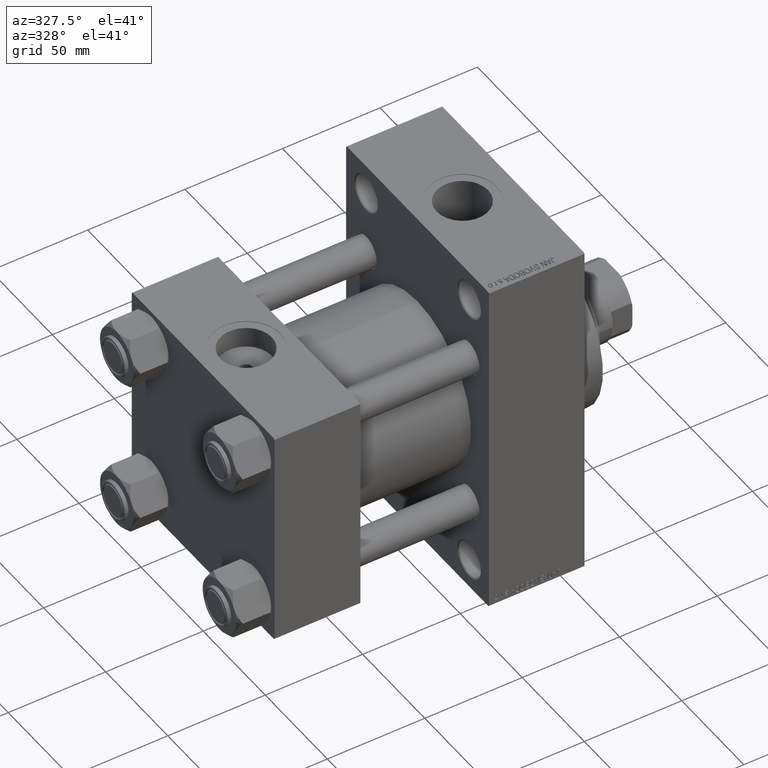
[diagram: clean part render]
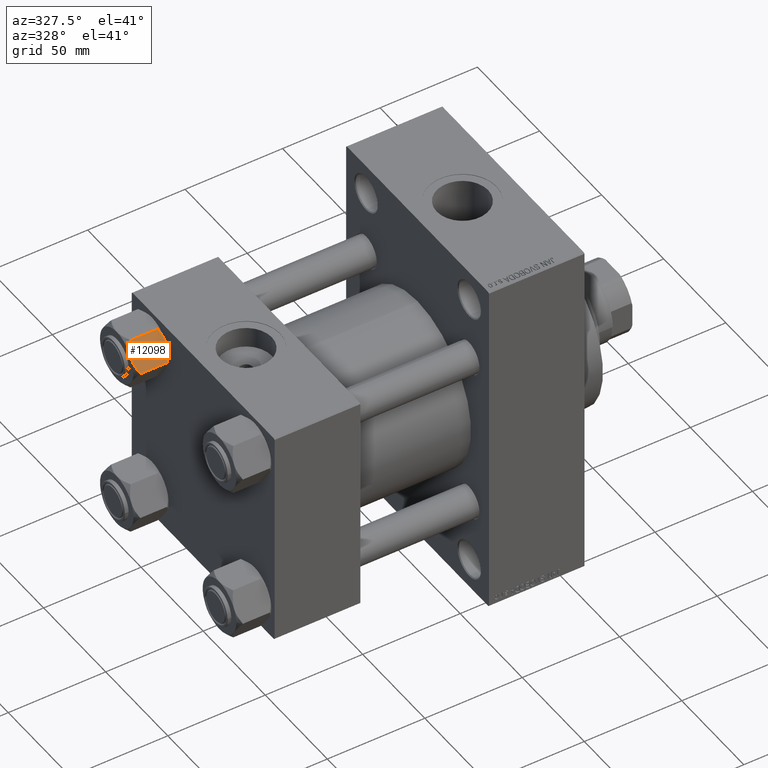
[diagram: same view with one face highlighted and labeled with its STEP entity id]
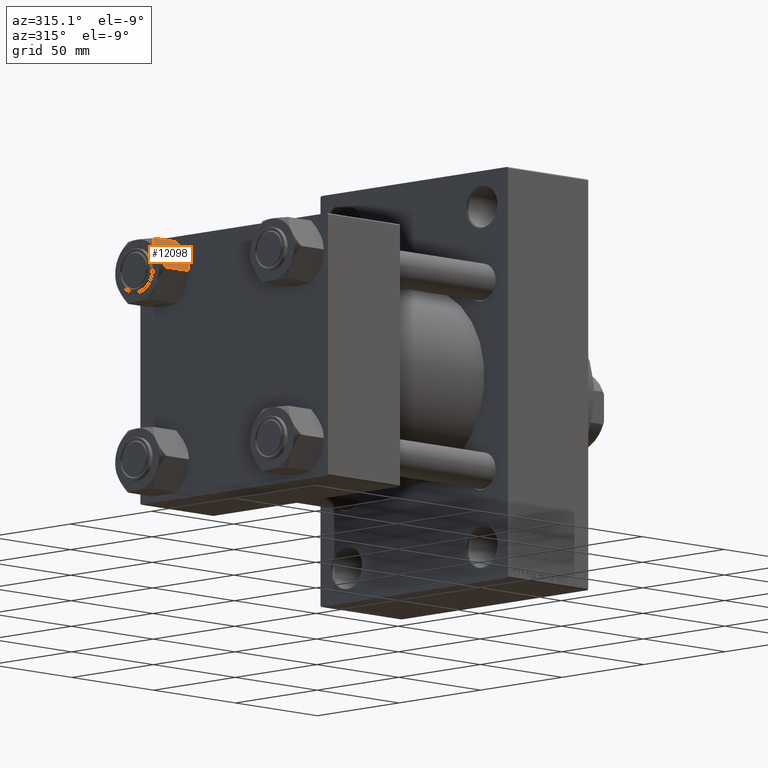
[diagram: same view with one face highlighted and labeled with its STEP entity id]
A machine part, auxiliary view. The second image highlights one B-rep face of the part: STEP entity #12098.
A second angle (auxiliary view) of the same face is appended — the face is thin or edge-on in the first view.
In plain terms, the highlighted planar face has unit normal (0, 0.866, -0.5).
Its self-contained STEP definition (entity closure, byte-faithful):
#261 = CARTESIAN_POINT ( 'NONE',  ( -15.52647173767732980, -0.1619957022864788043, -2.000000000000000000 ) ) ;
#283 = ORIENTED_EDGE ( 'NONE', *, *, #30141, .F. ) ;
#985 = CARTESIAN_POINT ( 'NONE',  ( -14.31545111198821552, -2.259544954993873311, -0.9142282604026915616 ) ) ;
#2061 = CARTESIAN_POINT ( 'NONE',  ( -12.37702203890362540, -5.617002596445037632, -18.00000000000000711 ) ) ;
#2301 = VERTEX_POINT ( 'NONE', #3026 ) ;
#2309 = CARTESIAN_POINT ( 'NONE',  ( -11.04378428799595468, -7.926238119585997666, -17.94910618364700028 ) ) ;
#2690 = CARTESIAN_POINT ( 'NONE',  ( -7.903528262322674358, -13.36532110482643354, -2.000000000000000000 ) ) ;
#3026 = CARTESIAN_POINT ( 'NONE',  ( -11.71500000000000874, -6.763658403556459753, 0.000000000000000000 ) ) ;
#3463 = CARTESIAN_POINT ( 'NONE',  ( -11.71500000000000874, -6.763658403556459753, -18.00000000000000000 ) ) ;
#4483 = CARTESIAN_POINT ( 'NONE',  ( -12.38621571200405391, -5.601078687526916511, -0.05089381635300645190 ) ) ;
#4737 = CARTESIAN_POINT ( 'NONE',  ( -13.04337073483128329, -4.462852799541069615, -0.2430846701012900901 ) ) ;
#5816 = CARTESIAN_POINT ( 'NONE',  ( -15.22736220980736199, -0.6800686015852018818, -16.29368822085855584 ) ) ;
#6088 = ORIENTED_EDGE ( 'NONE', *, *, #22617, .F. ) ;
#6796 = DIRECTION ( 'NONE',  ( 0.8660254037844390407, 0.4999999999999994449, 0.000000000000000000 ) ) ;
#7059 = CARTESIAN_POINT ( 'NONE',  ( -7.809999999999999609, -13.52731680711293727, -16.00000000000000000 ) ) ;
#7578 = B_SPLINE_CURVE_WITH_KNOTS ( 'NONE', 3,
 ( #36566, #16647, #47392, #13608, #28998, #2309, #17641, #28265 ),
 .UNSPECIFIED., .F., .F.,
 ( 4, 2, 2, 4 ),
 ( 4.472842641813524291E-07, 0.003945636373369312659, 0.005918230917921874813, 0.007890825462474436100 ),
 .UNSPECIFIED. ) ;
#9036 = DIRECTION ( 'NONE',  ( -0.4999999999999994449, 0.8660254037844390407, 0.000000000000000000 ) ) ;
#10563 = DIRECTION ( 'NONE',  ( -0.4999999999999993894, 0.8660254037844389297, 0.000000000000000000 ) ) ;
#10999 = DIRECTION ( 'NONE',  ( -0.000000000000000000, -0.000000000000000000, 1.000000000000000000 ) ) ;
#11518 = VECTOR ( 'NONE', #43037, 999.9999999999998863 ) ;
#12098 = ADVANCED_FACE ( 'NONE', ( #35874 ), #36610, .F. ) ;
#12377 = VERTEX_POINT ( 'NONE', #28180 ) ;
#12531 = VERTEX_POINT ( 'NONE', #3463 ) ;
#13608 = CARTESIAN_POINT ( 'NONE',  ( -10.06459418565412456, -9.622245127110602425, -17.61639331488794014 ) ) ;
#13844 = LINE ( 'NONE', #17877, #41020 ) ;
#14066 = EDGE_CURVE ( 'NONE', #17994, #12531, #7578, .T. ) ;
#14078 = VERTEX_POINT ( 'NONE', #7059 ) ;
#16647 = CARTESIAN_POINT ( 'NONE',  ( -8.502393313253753249, -12.32805640973648664, -16.58801072835993651 ) ) ;
#17274 = CARTESIAN_POINT ( 'NONE',  ( -15.61999999999999567, 8.023367828467702033E-15, -18.00000000000000000 ) ) ;
#17330 = CARTESIAN_POINT ( 'NONE',  ( -7.809999999999999609, -13.52731680711293727, -16.00000000000000000 ) ) ;
#17641 = CARTESIAN_POINT ( 'NONE',  ( -11.38181071908714692, -7.340759166634859945, -18.00000000000001421 ) ) ;
#17877 = CARTESIAN_POINT ( 'NONE',  ( -7.809999999999999609, -13.52731680711293727, -1.999999999999998224 ) ) ;
#17978 = B_SPLINE_CURVE_WITH_KNOTS ( 'NONE', 3,
 ( #46300, #31180, #985, #27680, #4737, #4483, #42539, #27418 ),
 .UNSPECIFIED., .F., .F.,
 ( 4, 2, 2, 4 ),
 ( 4.472842641982724416E-07, 0.003945636373369324802, 0.005918230917921887824, 0.007890825462474451713 ),
 .UNSPECIFIED. ) ;
#17994 = VERTEX_POINT ( 'NONE', #36627 ) ;
#18773 = VERTEX_POINT ( 'NONE', #31092 ) ;
#19029 = VECTOR ( 'NONE', #19945, 999.9999999999998863 ) ;
#19945 = DIRECTION ( 'NONE',  ( 0.4999999999999994449, -0.8660254037844390407, 0.000000000000000000 ) ) ;
#20309 = VERTEX_POINT ( 'NONE', #26407 ) ;
#22349 = CARTESIAN_POINT ( 'NONE',  ( -7.809999999999999609, -13.52731680711293727, -18.00000000000000000 ) ) ;
#22617 = EDGE_CURVE ( 'NONE', #14078, #17994, #23389, .T. ) ;
#23051 = CARTESIAN_POINT ( 'NONE',  ( -9.439480280627259745, -10.70497417113492311, -0.7317196846281081024 ) ) ;
#23279 = VERTEX_POINT ( 'NONE', #39588 ) ;
#23389 = LINE ( 'NONE', #32189, #11518 ) ;
#25225 = CARTESIAN_POINT ( 'NONE',  ( -13.99051971937274530, -2.822342635977989289, -17.26828031537188934 ) ) ;
#25391 = EDGE_CURVE ( 'NONE', #38987, #2301, #17978, .T. ) ;
#25517 = VECTOR ( 'NONE', #33143, 1000.000000000000000 ) ;
#25692 = VECTOR ( 'NONE', #10999, 1000.000000000000000 ) ;
#26407 = CARTESIAN_POINT ( 'NONE',  ( -7.903528262322674358, -13.36532110482643354, -2.000000000000000000 ) ) ;
#26508 = ORIENTED_EDGE ( 'NONE', *, *, #25391, .F. ) ;
#26839 = CARTESIAN_POINT ( 'NONE',  ( -8.202637790192643052, -12.84724820552771085, -1.706311779141444829 ) ) ;
#27403 = VECTOR ( 'NONE', #9036, 999.9999999999998863 ) ;
#27418 = CARTESIAN_POINT ( 'NONE',  ( -11.71500000000000874, -6.763658403556459753, 0.000000000000000000 ) ) ;
#27680 = CARTESIAN_POINT ( 'NONE',  ( -13.36540581434588226, -3.905071680002305534, -0.3836066851120543686 ) ) ;
#28180 = CARTESIAN_POINT ( 'NONE',  ( -15.52647173767732980, -0.1619957022864788043, -16.00000000000000000 ) ) ;
#28265 = CARTESIAN_POINT ( 'NONE',  ( -11.71500000000000874, -6.763658403556459753, -18.00000000000000000 ) ) ;
#28990 = AXIS2_PLACEMENT_3D ( 'NONE', #48859, #6796, #10563 ) ;
#28998 = CARTESIAN_POINT ( 'NONE',  ( -10.38662926516872353, -9.064464007571846338, -17.75691532989871746 ) ) ;
#30141 = EDGE_CURVE ( 'NONE', #20309, #23279, #37633, .T. ) ;
#30609 = CARTESIAN_POINT ( 'NONE',  ( -9.124083218049237942, -11.25125790807803838, -0.9473872146228101698 ) ) ;
#31092 = CARTESIAN_POINT ( 'NONE',  ( -15.61999999999999567, 8.023367828467702033E-15, -16.00000000000000000 ) ) ;
#31180 = CARTESIAN_POINT ( 'NONE',  ( -14.92760668674625002, -1.199260397376427090, -1.411989271640064825 ) ) ;
#32026 = CARTESIAN_POINT ( 'NONE',  ( -15.52647173767732980, -0.1619957022864788043, -16.00000000000000000 ) ) ;
#32189 = CARTESIAN_POINT ( 'NONE',  ( -7.809999999999999609, -13.52731680711293727, -16.00000000000000000 ) ) ;
#32413 = ORIENTED_EDGE ( 'NONE', *, *, #42700, .F. ) ;
#32640 = LINE ( 'NONE', #17274, #25517 ) ;
#32736 = ORIENTED_EDGE ( 'NONE', *, *, #39750, .F. ) ;
#33143 = DIRECTION ( 'NONE',  ( -0.000000000000000000, -0.000000000000000000, 1.000000000000000000 ) ) ;
#33842 = CARTESIAN_POINT ( 'NONE',  ( -7.809999999999999609, -13.52731680711293727, -1.999999999999998224 ) ) ;
#34324 = CARTESIAN_POINT ( 'NONE',  ( -15.61999999999999567, 8.023367828467702033E-15, -1.999999999999998224 ) ) ;
#34517 = EDGE_CURVE ( 'NONE', #18773, #47620, #32640, .T. ) ;
#34603 = ORIENTED_EDGE ( 'NONE', *, *, #34517, .F. ) ;
#35257 = EDGE_LOOP ( 'NONE', ( #6088, #37854, #283, #32736, #26508, #36783, #34603, #32413, #44855, #45720 ) ) ;
#35874 = FACE_OUTER_BOUND ( 'NONE', #35257, .T. ) ;
#36564 = CARTESIAN_POINT ( 'NONE',  ( -14.92394044919338825, -1.205610507090610461, -16.56553707812500065 ) ) ;
#36566 = CARTESIAN_POINT ( 'NONE',  ( -7.903528262322674358, -13.36532110482643354, -16.00000000000000000 ) ) ;
#36610 = PLANE ( 'NONE',  #28990 ) ;
#36627 = CARTESIAN_POINT ( 'NONE',  ( -7.903528262322674358, -13.36532110482643354, -16.00000000000000000 ) ) ;
#36783 = ORIENTED_EDGE ( 'NONE', *, *, #41652, .F. ) ;
#37443 = CARTESIAN_POINT ( 'NONE',  ( -10.40215497533437805, -9.037572688741340343, -0.1971866459924474513 ) ) ;
#37633 = LINE ( 'NONE', #33842, #19029 ) ;
#37792 = DIRECTION ( 'NONE',  ( 0.4999999999999994449, -0.8660254037844390407, 0.000000000000000000 ) ) ;
#37854 = ORIENTED_EDGE ( 'NONE', *, *, #40334, .T. ) ;
#38987 = VERTEX_POINT ( 'NONE', #261 ) ;
#39588 = CARTESIAN_POINT ( 'NONE',  ( -7.809999999999999609, -13.52731680711293727, -1.999999999999998224 ) ) ;
#39750 = EDGE_CURVE ( 'NONE', #2301, #20309, #44003, .T. ) ;
#40093 = CARTESIAN_POINT ( 'NONE',  ( -13.02784502466562699, -4.489744118371570281, -17.80281335400755083 ) ) ;
#40334 = EDGE_CURVE ( 'NONE', #14078, #23279, #41751, .T. ) ;
#40597 = CARTESIAN_POINT ( 'NONE',  ( -14.30591678195076533, -2.276058899034876681, -17.05261278537718894 ) ) ;
#41020 = VECTOR ( 'NONE', #37792, 999.9999999999998863 ) ;
#41652 = EDGE_CURVE ( 'NONE', #47620, #38987, #13844, .T. ) ;
#41751 = LINE ( 'NONE', #22349, #25692 ) ;
#42539 = CARTESIAN_POINT ( 'NONE',  ( -12.04818928091285635, -6.186557640478051567, 9.103910117089220044E-15 ) ) ;
#42700 = EDGE_CURVE ( 'NONE', #12377, #18773, #47324, .T. ) ;
#43037 = DIRECTION ( 'NONE',  ( -0.4999999999999994449, 0.8660254037844390407, 0.000000000000000000 ) ) ;
#44003 = B_SPLINE_CURVE_WITH_KNOTS ( 'NONE', 3,
 ( #49754, #48760, #37443, #23051, #30609, #45970, #26839, #2690 ),
 .UNSPECIFIED., .F., .F.,
 ( 4, 2, 2, 4 ),
 ( 0.007890825462474451713, 0.01181022244528557794, 0.01376992093669113758, 0.01572961942809669722 ),
 .UNSPECIFIED. ) ;
#44855 = ORIENTED_EDGE ( 'NONE', *, *, #47745, .F. ) ;
#45720 = ORIENTED_EDGE ( 'NONE', *, *, #14066, .F. ) ;
#45970 = CARTESIAN_POINT ( 'NONE',  ( -8.506059550806618574, -12.32170630002230816, -1.434462921875002461 ) ) ;
#46300 = CARTESIAN_POINT ( 'NONE',  ( -15.52647173767732980, -0.1619957022864788043, -2.000000000000000000 ) ) ;
#46416 = B_SPLINE_CURVE_WITH_KNOTS ( 'NONE', 3,
 ( #47646, #2061, #40093, #25225, #40597, #36564, #5816, #32026 ),
 .UNSPECIFIED., .F., .F.,
 ( 4, 2, 2, 4 ),
 ( 0.007890825462474436100, 0.01181022244528555712, 0.01376992093669111850, 0.01572961942809667987 ),
 .UNSPECIFIED. ) ;
#47324 = LINE ( 'NONE', #17330, #27403 ) ;
#47392 = CARTESIAN_POINT ( 'NONE',  ( -9.114548888011787753, -11.26777185211903820, -17.08577173959730899 ) ) ;
#47620 = VERTEX_POINT ( 'NONE', #34324 ) ;
#47646 = CARTESIAN_POINT ( 'NONE',  ( -11.71500000000000874, -6.763658403556459753, -18.00000000000000000 ) ) ;
#47745 = EDGE_CURVE ( 'NONE', #12531, #12377, #46416, .T. ) ;
#48760 = CARTESIAN_POINT ( 'NONE',  ( -11.05297796109637787, -7.910314210667872103, 9.086969458144130882E-15 ) ) ;
#48859 = CARTESIAN_POINT ( 'NONE',  ( -7.809999999999999609, -13.52731680711293727, -18.00000000000000000 ) ) ;
#49754 = CARTESIAN_POINT ( 'NONE',  ( -11.71500000000000874, -6.763658403556459753, 0.000000000000000000 ) ) ;